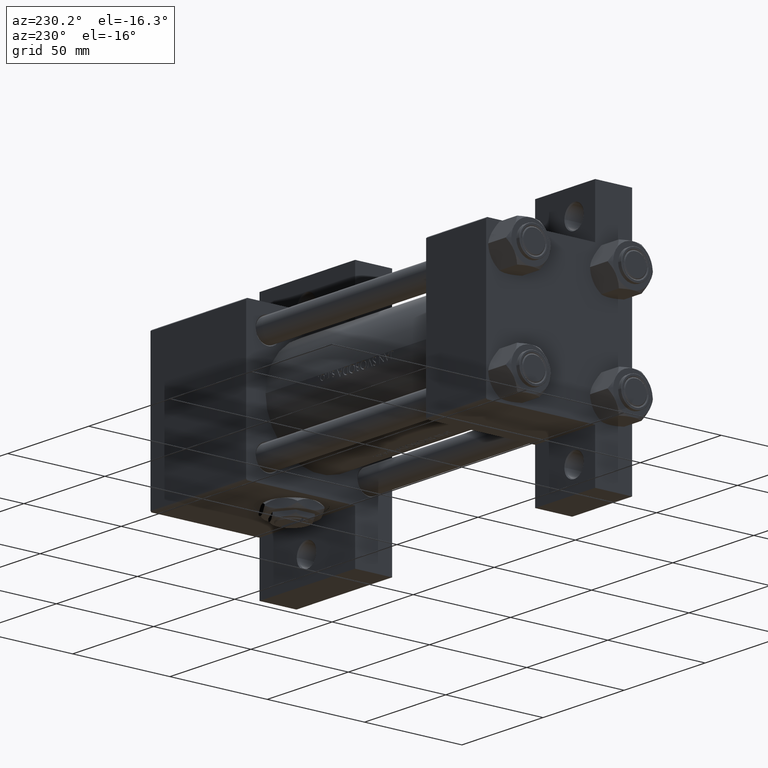
[diagram: clean part render]
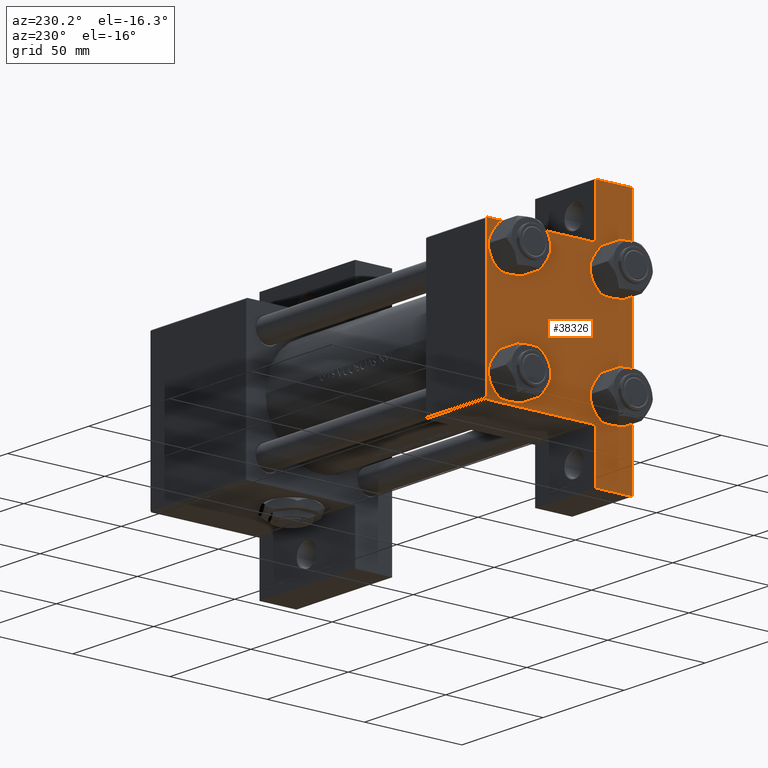
[diagram: same view with one face highlighted and labeled with its STEP entity id]
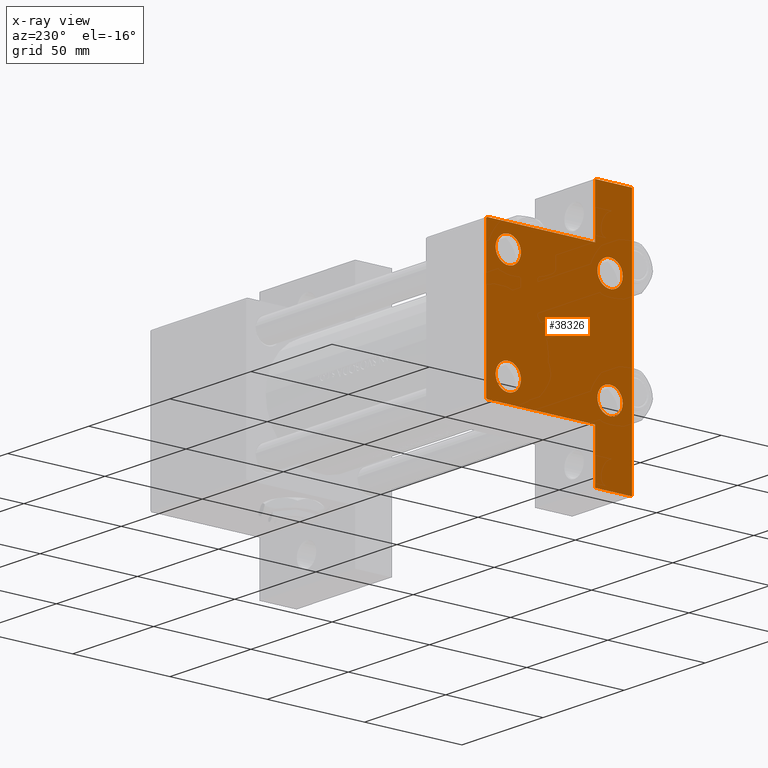
[diagram: x-ray of the same camera — body ghosted, the highlighted face saturated]
A machine part, auxiliary view. The second image highlights one B-rep face of the part: STEP entity #38326.
The next image is the same camera in x-ray: the body ghosted, the highlighted face saturated — about 0% of this face is hidden behind the body in this view.
In plain terms, the highlighted planar face has unit normal (-1, 0, -0).
Its self-contained STEP definition (entity closure, byte-faithful):
#93 = LINE ( 'NONE', #41927, #29491 ) ;
#313 = FACE_BOUND ( 'NONE', #33431, .T. ) ;
#434 = CARTESIAN_POINT ( 'NONE',  ( 0.000000000000000000, -37.50000000000000711, 37.49999999999999289 ) ) ;
#455 = DIRECTION ( 'NONE',  ( 1.000000000000000000, -0.000000000000000000, 0.000000000000000000 ) ) ;
#659 = CARTESIAN_POINT ( 'NONE',  ( 0.000000000000000000, 26.14999999999999858, -26.15000000000000213 ) ) ;
#988 = VECTOR ( 'NONE', #23215, 1000.000000000000000 ) ;
#1044 = CARTESIAN_POINT ( 'NONE',  ( 3.977209754999747208E-16, -63.49999999999998579, 26.72167621838007889 ) ) ;
#1803 = CARTESIAN_POINT ( 'NONE',  ( 0.000000000000000000, 26.14999999999999858, 26.15000000000000213 ) ) ;
#2019 = CIRCLE ( 'NONE', #14715, 6.500000000000023093 ) ;
#2500 = LINE ( 'NONE', #28892, #31196 ) ;
#3309 = EDGE_CURVE ( 'NONE', #3769, #21938, #40974, .T. ) ;
#3464 = ORIENTED_EDGE ( 'NONE', *, *, #44158, .T. ) ;
#3498 = DIRECTION ( 'NONE',  ( 4.278042683914906889E-17, -1.000000000000000000, 0.000000000000000000 ) ) ;
#3734 = CARTESIAN_POINT ( 'NONE',  ( 0.000000000000000000, -26.14999999999999147, -26.15000000000000924 ) ) ;
#3769 = VERTEX_POINT ( 'NONE', #12018 ) ;
#3942 = CIRCLE ( 'NONE', #22239, 6.500000000000015987 ) ;
#4095 = CARTESIAN_POINT ( 'NONE',  ( 0.000000000000000000, -37.50000000000000711, 36.99999999999999289 ) ) ;
#4305 = ORIENTED_EDGE ( 'NONE', *, *, #10690, .T. ) ;
#4465 = DIRECTION ( 'NONE',  ( 1.000000000000000000, -0.000000000000000000, 0.000000000000000000 ) ) ;
#4593 = CARTESIAN_POINT ( 'NONE',  ( 1.595073532467135441E-14, 63.50000000000001421, 26.72167621838005047 ) ) ;
#5744 = ORIENTED_EDGE ( 'NONE', *, *, #33623, .F. ) ;
#6000 = CARTESIAN_POINT ( 'NONE',  ( 0.000000000000000000, -26.14999999999999147, 32.65000000000003411 ) ) ;
#7317 = DIRECTION ( 'NONE',  ( -2.877097866686192789E-16, -1.000000000000000000, 0.000000000000000000 ) ) ;
#7336 = CARTESIAN_POINT ( 'NONE',  ( 3.977209754999747208E-16, -63.50000000000000000, -37.49999999999999289 ) ) ;
#7410 = CIRCLE ( 'NONE', #34423, 6.500000000000023093 ) ;
#7492 = VERTEX_POINT ( 'NONE', #25431 ) ;
#7853 = CARTESIAN_POINT ( 'NONE',  ( 0.000000000000000000, 37.24999999999999289, 37.24999999999999289 ) ) ;
#7975 = EDGE_CURVE ( 'NONE', #28205, #28878, #35566, .T. ) ;
#8156 = CARTESIAN_POINT ( 'NONE',  ( -7.145701223179004046E-16, -37.50000000000000711, -18.50000000000000355 ) ) ;
#8958 = DIRECTION ( 'NONE',  ( 0.000000000000000000, -1.000000000000000000, -9.251858538542972814E-17 ) ) ;
#9178 = FACE_OUTER_BOUND ( 'NONE', #10039, .T. ) ;
#9324 = CARTESIAN_POINT ( 'NONE',  ( 0.000000000000000000, 36.99999999999999289, 37.50000000000000000 ) ) ;
#10004 = CARTESIAN_POINT ( 'NONE',  ( 0.000000000000000000, -26.14999999999999147, -19.64999999999999503 ) ) ;
#10039 = EDGE_LOOP ( 'NONE', ( #35346, #40067, #27745, #14738, #23925, #30225, #44833, #26893, #5744, #32360 ) ) ;
#10213 = LINE ( 'NONE', #26405, #10839 ) ;
#10690 = EDGE_CURVE ( 'NONE', #21938, #3769, #29294, .T. ) ;
#10717 = AXIS2_PLACEMENT_3D ( 'NONE', #659, #15828, #31033 ) ;
#10839 = VECTOR ( 'NONE', #41579, 1000.000000000000114 ) ;
#10869 = VERTEX_POINT ( 'NONE', #40527 ) ;
#10985 = DIRECTION ( 'NONE',  ( 1.000000000000000000, -0.000000000000000000, 0.000000000000000000 ) ) ;
#12018 = CARTESIAN_POINT ( 'NONE',  ( 0.000000000000000000, 26.14999999999999858, -19.64999999999998792 ) ) ;
#12045 = VERTEX_POINT ( 'NONE', #7336 ) ;
#14195 = CARTESIAN_POINT ( 'NONE',  ( 3.977209754999744250E-16, -63.49999999999998579, -18.50000000000000355 ) ) ;
#14715 = AXIS2_PLACEMENT_3D ( 'NONE', #42340, #23664, #24161 ) ;
#14738 = ORIENTED_EDGE ( 'NONE', *, *, #21187, .T. ) ;
#15630 = CARTESIAN_POINT ( 'NONE',  ( 0.000000000000000000, -26.14999999999999147, -32.65000000000002700 ) ) ;
#15828 = DIRECTION ( 'NONE',  ( 1.000000000000000000, -0.000000000000000000, 0.000000000000000000 ) ) ;
#15926 = VECTOR ( 'NONE', #43187, 1000.000000000000000 ) ;
#16180 = ORIENTED_EDGE ( 'NONE', *, *, #29207, .T. ) ;
#16297 = CARTESIAN_POINT ( 'NONE',  ( 0.000000000000000000, -37.00000000000000711, 37.49999999999999289 ) ) ;
#16377 = CARTESIAN_POINT ( 'NONE',  ( 0.000000000000000000, 26.14999999999999858, -32.65000000000001990 ) ) ;
#16741 = CIRCLE ( 'NONE', #27908, 6.500000000000023093 ) ;
#17112 = CARTESIAN_POINT ( 'NONE',  ( 0.000000000000000000, 26.14999999999999858, 32.65000000000002700 ) ) ;
#17272 = VERTEX_POINT ( 'NONE', #4095 ) ;
#17325 = ORIENTED_EDGE ( 'NONE', *, *, #3309, .T. ) ;
#17522 = EDGE_CURVE ( 'NONE', #28878, #28205, #3942, .T. ) ;
#17570 = VECTOR ( 'NONE', #19772, 1000.000000000000114 ) ;
#18810 = EDGE_CURVE ( 'NONE', #32433, #40785, #25676, .T. ) ;
#18852 = EDGE_LOOP ( 'NONE', ( #26230, #47341 ) ) ;
#19188 = DIRECTION ( 'NONE',  ( 0.000000000000000000, 0.000000000000000000, 1.000000000000000000 ) ) ;
#19772 = DIRECTION ( 'NONE',  ( 0.000000000000000000, 0.7071067811865474617, -0.7071067811865474617 ) ) ;
#19972 = EDGE_CURVE ( 'NONE', #10869, #38689, #27761, .T. ) ;
#20160 = LINE ( 'NONE', #44073, #33748 ) ;
#20979 = AXIS2_PLACEMENT_3D ( 'NONE', #40518, #25098, #40275 ) ;
#21110 = EDGE_CURVE ( 'NONE', #38883, #21935, #16741, .T. ) ;
#21187 = EDGE_CURVE ( 'NONE', #41478, #7492, #26787, .T. ) ;
#21753 = ORIENTED_EDGE ( 'NONE', *, *, #21110, .T. ) ;
#21935 = VERTEX_POINT ( 'NONE', #17112 ) ;
#21938 = VERTEX_POINT ( 'NONE', #16377 ) ;
#22239 = AXIS2_PLACEMENT_3D ( 'NONE', #3734, #4465, #30135 ) ;
#22977 = FACE_BOUND ( 'NONE', #30867, .T. ) ;
#23215 = DIRECTION ( 'NONE',  ( 0.000000000000000000, -1.734723475976806848E-16, -1.000000000000000000 ) ) ;
#23664 = DIRECTION ( 'NONE',  ( 1.000000000000000000, -0.000000000000000000, 0.000000000000000000 ) ) ;
#23925 = ORIENTED_EDGE ( 'NONE', *, *, #24563, .T. ) ;
#24161 = DIRECTION ( 'NONE',  ( 0.000000000000000000, 0.000000000000000000, 1.000000000000000000 ) ) ;
#24201 = AXIS2_PLACEMENT_3D ( 'NONE', #24395, #45881, #39565 ) ;
#24395 = CARTESIAN_POINT ( 'NONE',  ( 0.000000000000000000, 0.000000000000000000, 0.000000000000000000 ) ) ;
#24563 = EDGE_CURVE ( 'NONE', #7492, #43869, #2500, .T. ) ;
#24879 = LINE ( 'NONE', #47792, #36704 ) ;
#25098 = DIRECTION ( 'NONE',  ( 1.000000000000000000, -0.000000000000000000, 0.000000000000000000 ) ) ;
#25401 = DIRECTION ( 'NONE',  ( 0.000000000000000000, 0.000000000000000000, -1.000000000000000000 ) ) ;
#25431 = CARTESIAN_POINT ( 'NONE',  ( 0.000000000000000000, 37.49999999999999289, 37.00000000000000000 ) ) ;
#25676 = LINE ( 'NONE', #14195, #38922 ) ;
#25857 = DIRECTION ( 'NONE',  ( 0.000000000000000000, -1.000000000000000000, -9.251858538542971581E-17 ) ) ;
#26230 = ORIENTED_EDGE ( 'NONE', *, *, #17522, .T. ) ;
#26405 = CARTESIAN_POINT ( 'NONE',  ( -0.000000000000000000, -37.25000000000000000, 37.25000000000000000 ) ) ;
#26787 = LINE ( 'NONE', #7853, #17570 ) ;
#26860 = EDGE_CURVE ( 'NONE', #30005, #36827, #7410, .T. ) ;
#26893 = ORIENTED_EDGE ( 'NONE', *, *, #42640, .T. ) ;
#27035 = DIRECTION ( 'NONE',  ( 0.000000000000000000, 0.000000000000000000, 1.000000000000000000 ) ) ;
#27745 = ORIENTED_EDGE ( 'NONE', *, *, #31399, .F. ) ;
#27761 = LINE ( 'NONE', #4593, #15926 ) ;
#27908 = AXIS2_PLACEMENT_3D ( 'NONE', #1803, #38460, #27035 ) ;
#27977 = VECTOR ( 'NONE', #33569, 1000.000000000000000 ) ;
#28137 = FACE_BOUND ( 'NONE', #43180, .T. ) ;
#28182 = CARTESIAN_POINT ( 'NONE',  ( 0.000000000000000000, -26.14999999999999147, 19.64999999999999147 ) ) ;
#28205 = VERTEX_POINT ( 'NONE', #15630 ) ;
#28647 = VERTEX_POINT ( 'NONE', #16297 ) ;
#28878 = VERTEX_POINT ( 'NONE', #10004 ) ;
#28892 = CARTESIAN_POINT ( 'NONE',  ( 0.000000000000000000, 37.49999999999999289, 37.50000000000000000 ) ) ;
#29207 = EDGE_CURVE ( 'NONE', #21935, #38883, #29738, .T. ) ;
#29294 = CIRCLE ( 'NONE', #39623, 6.500000000000015987 ) ;
#29491 = VECTOR ( 'NONE', #7317, 1000.000000000000000 ) ;
#29609 = EDGE_CURVE ( 'NONE', #10869, #43869, #93, .T. ) ;
#29738 = CIRCLE ( 'NONE', #20979, 6.500000000000023093 ) ;
#30005 = VERTEX_POINT ( 'NONE', #6000 ) ;
#30135 = DIRECTION ( 'NONE',  ( 0.000000000000000000, 0.000000000000000000, 1.000000000000000000 ) ) ;
#30225 = ORIENTED_EDGE ( 'NONE', *, *, #29609, .F. ) ;
#30694 = PLANE ( 'NONE',  #24201 ) ;
#30867 = EDGE_LOOP ( 'NONE', ( #17325, #4305 ) ) ;
#31033 = DIRECTION ( 'NONE',  ( 0.000000000000000000, 0.000000000000000000, 1.000000000000000000 ) ) ;
#31196 = VECTOR ( 'NONE', #25401, 1000.000000000000000 ) ;
#31399 = EDGE_CURVE ( 'NONE', #41478, #28647, #24879, .T. ) ;
#31515 = EDGE_CURVE ( 'NONE', #17272, #32433, #34543, .T. ) ;
#32360 = ORIENTED_EDGE ( 'NONE', *, *, #18810, .F. ) ;
#32433 = VERTEX_POINT ( 'NONE', #8156 ) ;
#33431 = EDGE_LOOP ( 'NONE', ( #16180, #21753 ) ) ;
#33569 = DIRECTION ( 'NONE',  ( 0.000000000000000000, 9.251858538542971581E-17, -1.000000000000000000 ) ) ;
#33623 = EDGE_CURVE ( 'NONE', #40785, #12045, #39372, .T. ) ;
#33748 = VECTOR ( 'NONE', #8958, 1000.000000000000000 ) ;
#34423 = AXIS2_PLACEMENT_3D ( 'NONE', #36486, #36729, #39729 ) ;
#34543 = LINE ( 'NONE', #434, #27977 ) ;
#35346 = ORIENTED_EDGE ( 'NONE', *, *, #31515, .F. ) ;
#35566 = CIRCLE ( 'NONE', #41937, 6.500000000000015987 ) ;
#36486 = CARTESIAN_POINT ( 'NONE',  ( 0.000000000000000000, -26.14999999999999147, 26.15000000000000924 ) ) ;
#36704 = VECTOR ( 'NONE', #25857, 1000.000000000000000 ) ;
#36729 = DIRECTION ( 'NONE',  ( 1.000000000000000000, -0.000000000000000000, 0.000000000000000000 ) ) ;
#36815 = CARTESIAN_POINT ( 'NONE',  ( 0.000000000000000000, 26.14999999999999858, 19.64999999999998437 ) ) ;
#36827 = VERTEX_POINT ( 'NONE', #28182 ) ;
#37882 = CARTESIAN_POINT ( 'NONE',  ( 0.000000000000000000, -26.14999999999999147, -26.15000000000000924 ) ) ;
#38326 = ADVANCED_FACE ( 'NONE', ( #28137, #43319, #22977, #313, #9178 ), #30694, .T. ) ;
#38460 = DIRECTION ( 'NONE',  ( 1.000000000000000000, -0.000000000000000000, 0.000000000000000000 ) ) ;
#38689 = VERTEX_POINT ( 'NONE', #43258 ) ;
#38883 = VERTEX_POINT ( 'NONE', #36815 ) ;
#38922 = VECTOR ( 'NONE', #3498, 1000.000000000000000 ) ;
#39372 = LINE ( 'NONE', #1044, #988 ) ;
#39565 = DIRECTION ( 'NONE',  ( -0.000000000000000000, 0.000000000000000000, 1.000000000000000000 ) ) ;
#39623 = AXIS2_PLACEMENT_3D ( 'NONE', #46518, #455, #42285 ) ;
#39715 = CARTESIAN_POINT ( 'NONE',  ( 0.000000000000000000, 37.49999999999999289, -18.49999999999999645 ) ) ;
#39729 = DIRECTION ( 'NONE',  ( 0.000000000000000000, 0.000000000000000000, 1.000000000000000000 ) ) ;
#40067 = ORIENTED_EDGE ( 'NONE', *, *, #47059, .T. ) ;
#40275 = DIRECTION ( 'NONE',  ( 0.000000000000000000, 0.000000000000000000, 1.000000000000000000 ) ) ;
#40518 = CARTESIAN_POINT ( 'NONE',  ( 0.000000000000000000, 26.14999999999999858, 26.15000000000000213 ) ) ;
#40527 = CARTESIAN_POINT ( 'NONE',  ( 1.595073532467135441E-14, 63.50000000000000000, -18.50000000000000355 ) ) ;
#40785 = VERTEX_POINT ( 'NONE', #41369 ) ;
#40974 = CIRCLE ( 'NONE', #10717, 6.500000000000015987 ) ;
#41369 = CARTESIAN_POINT ( 'NONE',  ( 3.977209754999747208E-16, -63.50000000000000000, -18.50000000000000355 ) ) ;
#41478 = VERTEX_POINT ( 'NONE', #9324 ) ;
#41579 = DIRECTION ( 'NONE',  ( -0.000000000000000000, 0.7071067811865474617, 0.7071067811865474617 ) ) ;
#41927 = CARTESIAN_POINT ( 'NONE',  ( 1.595073532467135757E-14, 63.50000000000001421, -18.50000000000000355 ) ) ;
#41937 = AXIS2_PLACEMENT_3D ( 'NONE', #37882, #10985, #19188 ) ;
#42285 = DIRECTION ( 'NONE',  ( 0.000000000000000000, 0.000000000000000000, 1.000000000000000000 ) ) ;
#42340 = CARTESIAN_POINT ( 'NONE',  ( 0.000000000000000000, -26.14999999999999147, 26.15000000000000924 ) ) ;
#42640 = EDGE_CURVE ( 'NONE', #38689, #12045, #20160, .T. ) ;
#43180 = EDGE_LOOP ( 'NONE', ( #47478, #3464 ) ) ;
#43187 = DIRECTION ( 'NONE',  ( 0.000000000000000000, -1.734723475976806848E-16, -1.000000000000000000 ) ) ;
#43258 = CARTESIAN_POINT ( 'NONE',  ( 1.595073532467135441E-14, 63.50000000000000000, -37.50000000000002132 ) ) ;
#43319 = FACE_BOUND ( 'NONE', #18852, .T. ) ;
#43869 = VERTEX_POINT ( 'NONE', #39715 ) ;
#44073 = CARTESIAN_POINT ( 'NONE',  ( 0.000000000000000000, 37.49999999999999289, -37.50000000000000000 ) ) ;
#44158 = EDGE_CURVE ( 'NONE', #36827, #30005, #2019, .T. ) ;
#44833 = ORIENTED_EDGE ( 'NONE', *, *, #19972, .T. ) ;
#45881 = DIRECTION ( 'NONE',  ( -1.000000000000000000, 0.000000000000000000, -0.000000000000000000 ) ) ;
#46518 = CARTESIAN_POINT ( 'NONE',  ( 0.000000000000000000, 26.14999999999999858, -26.15000000000000213 ) ) ;
#47059 = EDGE_CURVE ( 'NONE', #17272, #28647, #10213, .T. ) ;
#47341 = ORIENTED_EDGE ( 'NONE', *, *, #7975, .T. ) ;
#47478 = ORIENTED_EDGE ( 'NONE', *, *, #26860, .T. ) ;
#47792 = CARTESIAN_POINT ( 'NONE',  ( 0.000000000000000000, 37.49999999999999289, 37.50000000000000000 ) ) ;